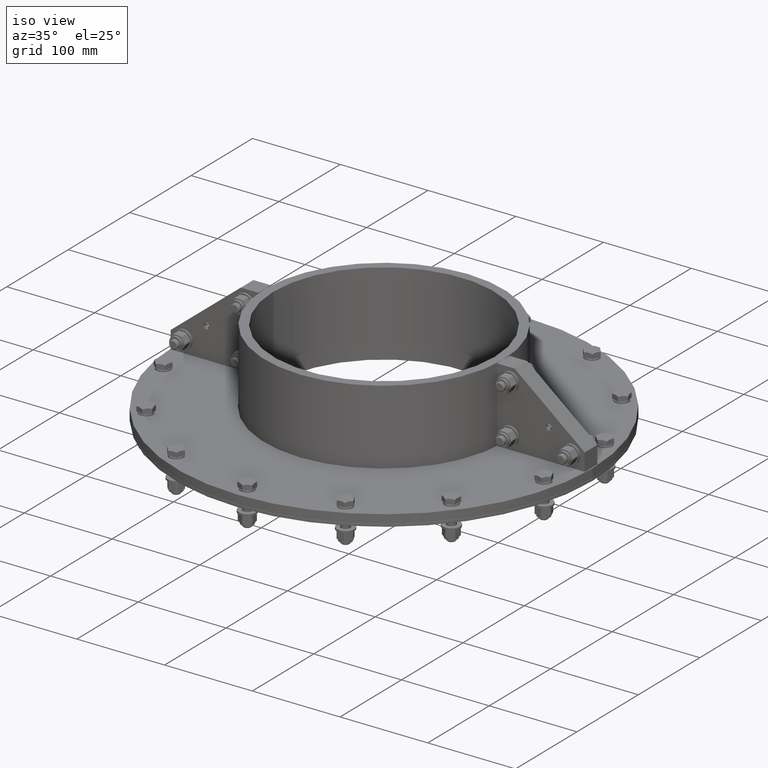
[diagram: clean part render]
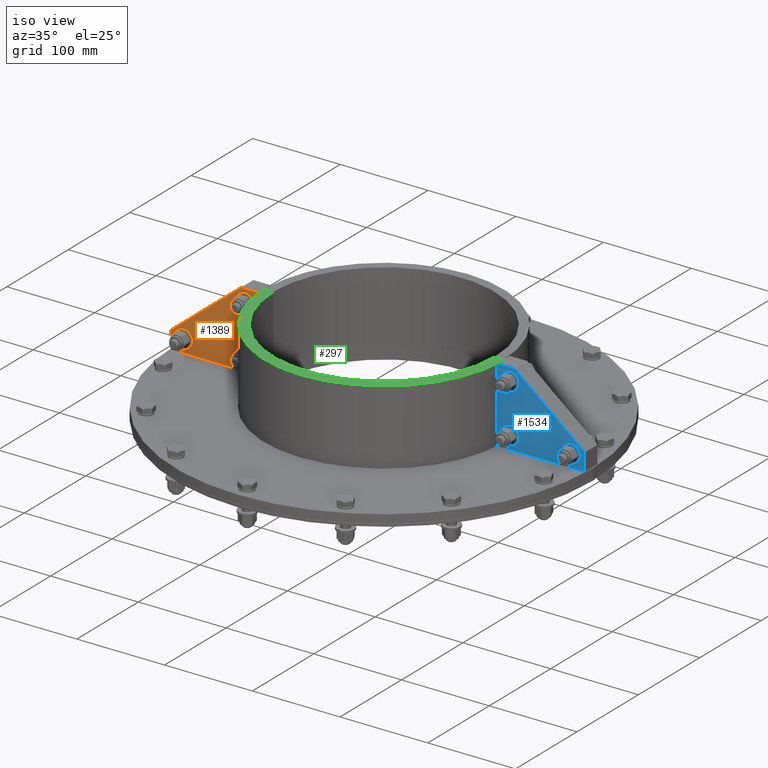
[diagram: same view with three faces highlighted in distinct colors, each labeled with its STEP entity id]
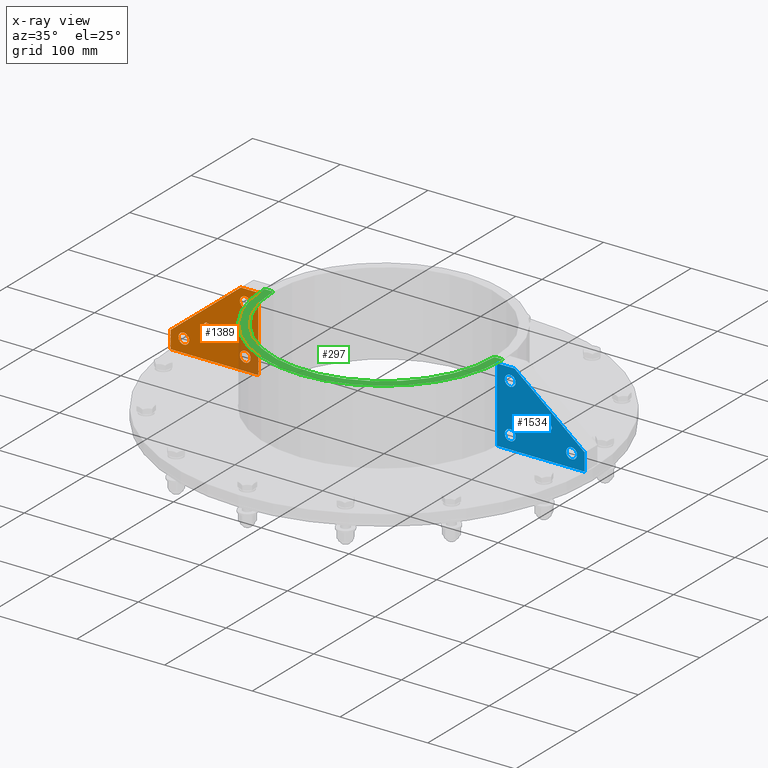
[diagram: x-ray of the same camera — body ghosted, the three highlighted faces saturated]
A machine part, iso view with three faces highlighted in distinct colors.
The next image is the same camera in x-ray (body ghosted, the three faces saturated) — at least one of them is partly hidden behind the body in this view.
Their STEP definitions:

[orange] entity #1389 — the highlighted planar face has unit normal (-0, 1, -0).
#1223=CARTESIAN_POINT('',(21.150000000000002,71.0,-5.0));
#1224=VERTEX_POINT('',#1223);
#1225=CARTESIAN_POINT('',(15.0,71.0,-5.0));
#1226=DIRECTION('',(0.0,0.0,1.0));
#1227=DIRECTION('',(-1.0,0.0,0.0));
#1228=AXIS2_PLACEMENT_3D('',#1225,#1226,#1227);
#1229=CIRCLE('',#1228,6.150000000000001);
#1230=EDGE_CURVE('',#1224,#1224,#1229,.T.);
#1251=CARTESIAN_POINT('',(91.150000000000006,15.000000000000002,-5.0));
#1252=VERTEX_POINT('',#1251);
#1253=CARTESIAN_POINT('',(85.0,15.000000000000002,-5.0));
#1254=DIRECTION('',(0.0,0.0,1.0));
#1255=DIRECTION('',(-1.0,0.0,0.0));
#1256=AXIS2_PLACEMENT_3D('',#1253,#1254,#1255);
#1257=CIRCLE('',#1256,6.150000000000001);
#1258=EDGE_CURVE('',#1252,#1252,#1257,.T.);
#1279=CARTESIAN_POINT('',(21.150000000000002,15.000000000000002,-5.0));
#1280=VERTEX_POINT('',#1279);
#1281=CARTESIAN_POINT('',(15.0,15.000000000000002,-5.0));
#1282=DIRECTION('',(0.0,0.0,1.0));
#1283=DIRECTION('',(-1.0,0.0,0.0));
#1284=AXIS2_PLACEMENT_3D('',#1281,#1282,#1283);
#1285=CIRCLE('',#1284,6.150000000000001);
#1286=EDGE_CURVE('',#1280,#1280,#1285,.T.);
#1307=CARTESIAN_POINT('',(62.350000000000001,35.0,-5.0));
#1308=VERTEX_POINT('',#1307);
#1309=CARTESIAN_POINT('',(59.0,35.0,-5.0));
#1310=DIRECTION('',(0.0,0.0,1.0));
#1311=DIRECTION('',(-1.0,0.0,0.0));
#1312=AXIS2_PLACEMENT_3D('',#1309,#1310,#1311);
#1313=CIRCLE('',#1312,3.35);
#1314=EDGE_CURVE('',#1308,#1308,#1313,.T.);
#1330=CARTESIAN_POINT('',(40.797228400869528,33.297228400869542,-5.0));
#1331=DIRECTION('',(0.0,0.0,1.0));
#1332=DIRECTION('',(1.0,0.0,0.0));
#1333=AXIS2_PLACEMENT_3D('',#1330,#1331,#1332);
#1334=PLANE('',#1333);
#1335=CARTESIAN_POINT('',(0.0,0.0,-5.0));
#1336=VERTEX_POINT('',#1335);
#1337=CARTESIAN_POINT('',(100.0,1.836970E-014,-5.0));
#1338=VERTEX_POINT('',#1337);
#1339=CARTESIAN_POINT('',(0.0,0.0,-5.0));
#1340=DIRECTION('',(1.0,0.0,0.0));
#1341=VECTOR('',#1340,100.0);
#1342=LINE('',#1339,#1341);
#1343=EDGE_CURVE('',#1336,#1338,#1342,.T.);
#1344=ORIENTED_EDGE('',*,*,#1343,.F.);
#1345=CARTESIAN_POINT('',(0.0,85.0,-5.0));
#1346=VERTEX_POINT('',#1345);
#1347=CARTESIAN_POINT('',(0.0,85.0,-5.0));
#1348=DIRECTION('',(0.0,-1.0,0.0));
#1349=VECTOR('',#1348,85.0);
#1350=LINE('',#1347,#1349);
#1351=EDGE_CURVE('',#1346,#1336,#1350,.T.);
#1352=ORIENTED_EDGE('',*,*,#1351,.F.);
#1353=CARTESIAN_POINT('',(20.0,85.0,-5.0));
#1354=VERTEX_POINT('',#1353);
#1355=CARTESIAN_POINT('',(20.0,85.0,-5.0));
#1356=DIRECTION('',(-1.0,0.0,0.0));
#1357=VECTOR('',#1356,20.0);
#1358=LINE('',#1355,#1357);
#1359=EDGE_CURVE('',#1354,#1346,#1358,.T.);
#1360=ORIENTED_EDGE('',*,*,#1359,.F.);
#1361=CARTESIAN_POINT('',(100.0,20.000000000000018,-5.0));
#1362=VERTEX_POINT('',#1361);
#1363=CARTESIAN_POINT('',(100.0,20.000000000000014,-5.0));
#1364=DIRECTION('',(-0.776114000116266,0.630592625094466,0.0));
#1365=VECTOR('',#1364,103.0776406404415);
#1366=LINE('',#1363,#1365);
#1367=EDGE_CURVE('',#1362,#1354,#1366,.T.);
#1368=ORIENTED_EDGE('',*,*,#1367,.F.);
#1369=CARTESIAN_POINT('',(100.0,1.776357E-014,-5.0));
#1370=DIRECTION('',(0.0,1.0,0.0));
#1371=VECTOR('',#1370,20.0);
#1372=LINE('',#1369,#1371);
#1373=EDGE_CURVE('',#1338,#1362,#1372,.T.);
#1374=ORIENTED_EDGE('',*,*,#1373,.F.);
#1375=EDGE_LOOP('',(#1344,#1352,#1360,#1368,#1374));
#1376=FACE_OUTER_BOUND('',#1375,.T.);
#1377=ORIENTED_EDGE('',*,*,#1230,.T.);
#1378=EDGE_LOOP('',(#1377));
#1379=FACE_BOUND('',#1378,.T.);
#1380=ORIENTED_EDGE('',*,*,#1258,.T.);
#1381=EDGE_LOOP('',(#1380));
#1382=FACE_BOUND('',#1381,.T.);
#1383=ORIENTED_EDGE('',*,*,#1286,.T.);
#1384=EDGE_LOOP('',(#1383));
#1385=FACE_BOUND('',#1384,.T.);
#1386=ORIENTED_EDGE('',*,*,#1314,.T.);
#1387=EDGE_LOOP('',(#1386));
#1388=FACE_BOUND('',#1387,.T.);
#1389=ADVANCED_FACE('',(#1376,#1379,#1382,#1385,#1388),#1334,.F.);

[blue] entity #1534 — the highlighted planar face has unit normal (0, -1, 0).
#1234=CARTESIAN_POINT('',(21.150000000000002,71.0,5.0));
#1235=VERTEX_POINT('',#1234);
#1236=CARTESIAN_POINT('',(15.0,71.0,5.0));
#1237=DIRECTION('',(0.0,0.0,-1.0));
#1238=DIRECTION('',(-1.0,0.0,0.0));
#1239=AXIS2_PLACEMENT_3D('',#1236,#1237,#1238);
#1240=CIRCLE('',#1239,6.150000000000001);
#1241=EDGE_CURVE('',#1235,#1235,#1240,.T.);
#1262=CARTESIAN_POINT('',(91.150000000000006,15.000000000000002,5.0));
#1263=VERTEX_POINT('',#1262);
#1264=CARTESIAN_POINT('',(85.0,15.000000000000002,5.0));
#1265=DIRECTION('',(0.0,0.0,-1.0));
#1266=DIRECTION('',(-1.0,0.0,0.0));
#1267=AXIS2_PLACEMENT_3D('',#1264,#1265,#1266);
#1268=CIRCLE('',#1267,6.150000000000001);
#1269=EDGE_CURVE('',#1263,#1263,#1268,.T.);
#1290=CARTESIAN_POINT('',(21.150000000000002,15.000000000000002,5.0));
#1291=VERTEX_POINT('',#1290);
#1292=CARTESIAN_POINT('',(15.0,15.000000000000002,5.0));
#1293=DIRECTION('',(0.0,0.0,-1.0));
#1294=DIRECTION('',(-1.0,0.0,0.0));
#1295=AXIS2_PLACEMENT_3D('',#1292,#1293,#1294);
#1296=CIRCLE('',#1295,6.150000000000001);
#1297=EDGE_CURVE('',#1291,#1291,#1296,.T.);
#1318=CARTESIAN_POINT('',(62.350000000000001,35.0,5.0));
#1319=VERTEX_POINT('',#1318);
#1320=CARTESIAN_POINT('',(59.0,35.0,5.0));
#1321=DIRECTION('',(0.0,0.0,-1.0));
#1322=DIRECTION('',(-1.0,0.0,0.0));
#1323=AXIS2_PLACEMENT_3D('',#1320,#1321,#1322);
#1324=CIRCLE('',#1323,3.35);
#1325=EDGE_CURVE('',#1319,#1319,#1324,.T.);
#1395=CARTESIAN_POINT('',(0.0,85.0,5.0));
#1396=VERTEX_POINT('',#1395);
#1397=CARTESIAN_POINT('',(20.0,85.0,5.0));
#1398=VERTEX_POINT('',#1397);
#1399=CARTESIAN_POINT('',(0.0,85.0,5.0));
#1400=DIRECTION('',(1.0,0.0,0.0));
#1401=VECTOR('',#1400,20.0);
#1402=LINE('',#1399,#1401);
#1403=EDGE_CURVE('',#1396,#1398,#1402,.T.);
#1426=CARTESIAN_POINT('',(100.0,20.000000000000018,5.0));
#1427=VERTEX_POINT('',#1426);
#1428=CARTESIAN_POINT('',(20.0,85.0,5.0));
#1429=DIRECTION('',(0.776114000116266,-0.630592625094466,0.0));
#1430=VECTOR('',#1429,103.0776406404415);
#1431=LINE('',#1428,#1430);
#1432=EDGE_CURVE('',#1398,#1427,#1431,.T.);
#1450=CARTESIAN_POINT('',(100.0,1.836970E-014,5.0));
#1451=VERTEX_POINT('',#1450);
#1452=CARTESIAN_POINT('',(100.0,20.000000000000018,5.0));
#1453=DIRECTION('',(0.0,-1.0,0.0));
#1454=VECTOR('',#1453,20.0);
#1455=LINE('',#1452,#1454);
#1456=EDGE_CURVE('',#1427,#1451,#1455,.T.);
#1474=CARTESIAN_POINT('',(0.0,0.0,5.0));
#1475=VERTEX_POINT('',#1474);
#1476=CARTESIAN_POINT('',(100.0,1.836970E-014,5.0));
#1477=DIRECTION('',(-1.0,0.0,0.0));
#1478=VECTOR('',#1477,100.0);
#1479=LINE('',#1476,#1478);
#1480=EDGE_CURVE('',#1451,#1475,#1479,.T.);
#1498=CARTESIAN_POINT('',(0.0,0.0,5.0));
#1499=DIRECTION('',(0.0,1.0,0.0));
#1500=VECTOR('',#1499,85.0);
#1501=LINE('',#1498,#1500);
#1502=EDGE_CURVE('',#1475,#1396,#1501,.T.);
#1510=CARTESIAN_POINT('',(40.797228400869528,33.297228400869542,5.0));
#1511=DIRECTION('',(0.0,0.0,1.0));
#1512=DIRECTION('',(1.0,0.0,0.0));
#1513=AXIS2_PLACEMENT_3D('',#1510,#1511,#1512);
#1514=PLANE('',#1513);
#1515=ORIENTED_EDGE('',*,*,#1403,.F.);
#1516=ORIENTED_EDGE('',*,*,#1502,.F.);
#1517=ORIENTED_EDGE('',*,*,#1480,.F.);
#1518=ORIENTED_EDGE('',*,*,#1456,.F.);
#1519=ORIENTED_EDGE('',*,*,#1432,.F.);
#1520=EDGE_LOOP('',(#1515,#1516,#1517,#1518,#1519));
#1521=FACE_OUTER_BOUND('',#1520,.T.);
#1522=ORIENTED_EDGE('',*,*,#1241,.T.);
#1523=EDGE_LOOP('',(#1522));
#1524=FACE_BOUND('',#1523,.T.);
#1525=ORIENTED_EDGE('',*,*,#1269,.T.);
#1526=EDGE_LOOP('',(#1525));
#1527=FACE_BOUND('',#1526,.T.);
#1528=ORIENTED_EDGE('',*,*,#1297,.T.);
#1529=EDGE_LOOP('',(#1528));
#1530=FACE_BOUND('',#1529,.T.);
#1531=ORIENTED_EDGE('',*,*,#1325,.T.);
#1532=EDGE_LOOP('',(#1531));
#1533=FACE_BOUND('',#1532,.T.);
#1534=ADVANCED_FACE('',(#1521,#1524,#1527,#1530,#1533),#1514,.T.);

[green] entity #297 — the highlighted planar face has unit normal (-0, -0, -1).
#151=CARTESIAN_POINT('',(135.99985294109698,0.2,95.0));
#152=VERTEX_POINT('',#151);
#161=CARTESIAN_POINT('',(125.9998412697413,0.2,95.0));
#162=VERTEX_POINT('',#161);
#163=CARTESIAN_POINT('',(125.9998412697413,0.2,95.0));
#164=DIRECTION('',(1.0,0.0,0.0));
#165=VECTOR('',#164,10.000011671355679);
#166=LINE('',#163,#165);
#167=EDGE_CURVE('',#162,#152,#166,.T.);
#193=CARTESIAN_POINT('',(-135.99985294109698,0.2,95.0));
#194=VERTEX_POINT('',#193);
#209=CARTESIAN_POINT('',(-125.9998412697413,0.2,95.0));
#210=VERTEX_POINT('',#209);
#217=CARTESIAN_POINT('',(-135.99985294109698,0.2,95.0));
#218=DIRECTION('',(1.0,0.0,0.0));
#219=VECTOR('',#218,10.000011671355679);
#220=LINE('',#217,#219);
#221=EDGE_CURVE('',#194,#210,#220,.T.);
#258=CARTESIAN_POINT('',(0.0,0.0,95.0));
#259=DIRECTION('',(0.0,0.0,-1.0));
#260=DIRECTION('',(-1.0,0.0,0.0));
#261=AXIS2_PLACEMENT_3D('',#258,#259,#260);
#262=CIRCLE('',#261,126.00000000000001);
#263=EDGE_CURVE('',#210,#162,#262,.T.);
#274=CARTESIAN_POINT('',(0.0,0.0,95.0));
#275=DIRECTION('',(0.0,0.0,-1.0));
#276=DIRECTION('',(-1.0,0.0,0.0));
#277=AXIS2_PLACEMENT_3D('',#274,#275,#276);
#278=CIRCLE('',#277,136.0);
#279=EDGE_CURVE('',#194,#152,#278,.T.);
#286=CARTESIAN_POINT('',(0.0,0.0,95.0));
#287=DIRECTION('',(0.0,0.0,-1.0));
#288=DIRECTION('',(-1.0,0.0,0.0));
#289=AXIS2_PLACEMENT_3D('',#286,#287,#288);
#290=PLANE('',#289);
#291=ORIENTED_EDGE('',*,*,#221,.T.);
#292=ORIENTED_EDGE('',*,*,#263,.T.);
#293=ORIENTED_EDGE('',*,*,#167,.T.);
#294=ORIENTED_EDGE('',*,*,#279,.F.);
#295=EDGE_LOOP('',(#291,#292,#293,#294));
#296=FACE_OUTER_BOUND('',#295,.T.);
#297=ADVANCED_FACE('',(#296),#290,.F.);